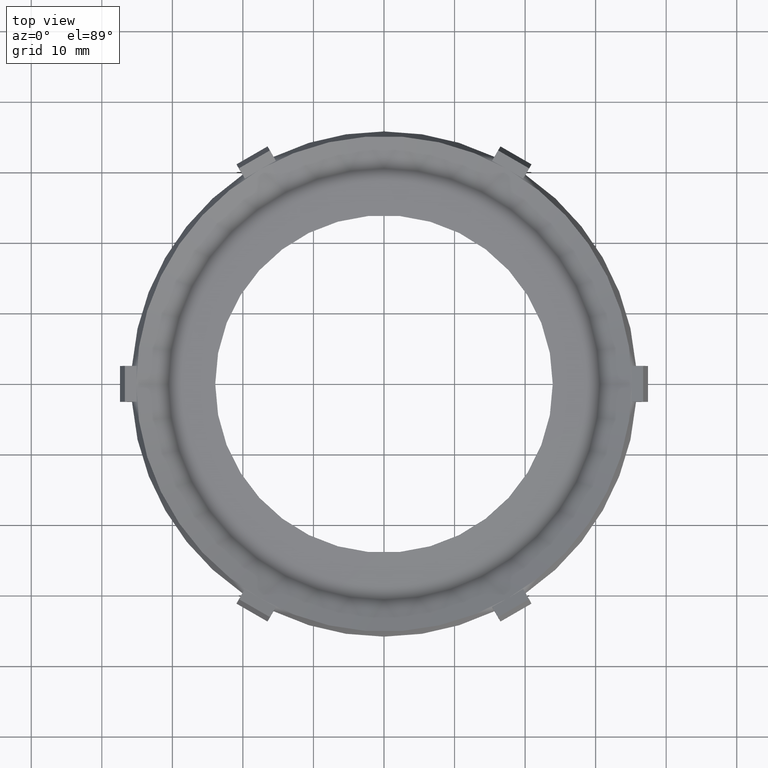
[diagram: clean part render]
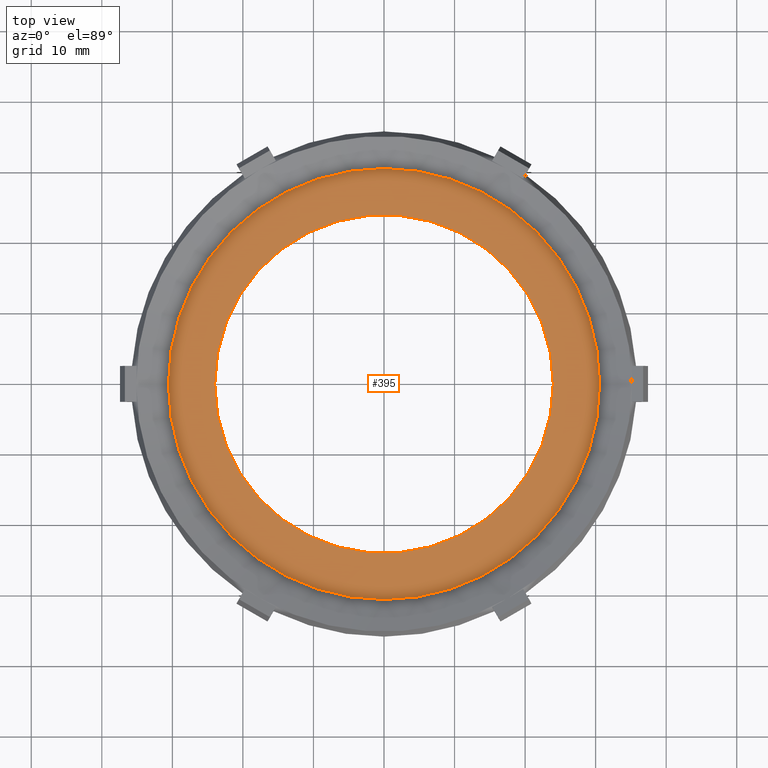
[diagram: same view with one face highlighted and labeled with its STEP entity id]
A machine part, top view. The second image highlights one B-rep face of the part: STEP entity #395.
In plain terms, the highlighted planar face has unit normal (-0, 0, -1).
Its self-contained STEP definition (entity closure, byte-faithful):
#2 = VERTEX_POINT ( 'NONE', #727 ) ;
#3 = VERTEX_POINT ( 'NONE', #726 ) ;
#11 = EDGE_CURVE ( 'NONE', #3, #2, #754, .T. ) ;
#33 = VERTEX_POINT ( 'NONE', #799 ) ;
#51 = VERTEX_POINT ( 'NONE', #908 ) ;
#55 = EDGE_CURVE ( 'NONE', #33, #51, #893, .T. ) ;
#296 = EDGE_LOOP ( 'NONE', ( #323, #398 ) ) ;
#323 = ORIENTED_EDGE ( 'NONE', *, *, #55, .T. ) ;
#326 = ORIENTED_EDGE ( 'NONE', *, *, #11, .F. ) ;
#395 = ADVANCED_FACE ( 'NONE', ( #1475, #1474 ), #1489, .F. ) ;
#398 = ORIENTED_EDGE ( 'NONE', *, *, #399, .T. ) ;
#399 = EDGE_CURVE ( 'NONE', #51, #33, #1498, .T. ) ;
#400 = EDGE_LOOP ( 'NONE', ( #326, #409 ) ) ;
#409 = ORIENTED_EDGE ( 'NONE', *, *, #489, .F. ) ;
#489 = EDGE_CURVE ( 'NONE', #2, #3, #1733, .T. ) ;
#726 = CARTESIAN_POINT ( 'NONE',  ( 1.202889546860454800, 0.0000000000000000000, -0.005514642167915289500 ) ) ;
#727 = CARTESIAN_POINT ( 'NONE',  ( -1.202889546860454800, 1.583280753875847200E-016, -0.005514642167915289500 ) ) ;
#750 = DIRECTION ( 'NONE',  ( -1.000000000000000000, 0.0000000000000000000, 0.0000000000000000000 ) ) ;
#751 = DIRECTION ( 'NONE',  ( -0.0000000000000000000, -0.0000000000000000000, -1.000000000000000000 ) ) ;
#752 = CARTESIAN_POINT ( 'NONE',  ( 0.0000000000000000000, 0.0000000000000000000, -0.005514642167915289500 ) ) ;
#753 = AXIS2_PLACEMENT_3D ( 'NONE', #752, #751, #750 ) ;
#754 = CIRCLE ( 'NONE', #753, 1.202889546860454800 ) ;
#799 = CARTESIAN_POINT ( 'NONE',  ( -0.9450000000000000600, 0.0000000000000000000, -0.005514642167915144600 ) ) ;
#889 = DIRECTION ( 'NONE',  ( -1.000000000000000000, 0.0000000000000000000, 0.0000000000000000000 ) ) ;
#890 = DIRECTION ( 'NONE',  ( -0.0000000000000000000, -0.0000000000000000000, -1.000000000000000000 ) ) ;
#891 = CARTESIAN_POINT ( 'NONE',  ( 0.0000000000000000000, 0.0000000000000000000, -0.005514642167915188900 ) ) ;
#892 = AXIS2_PLACEMENT_3D ( 'NONE', #891, #890, #889 ) ;
#893 = CIRCLE ( 'NONE', #892, 0.9450000000000000600 ) ;
#908 = CARTESIAN_POINT ( 'NONE',  ( 0.9450000000000000600, 1.157253004362146800E-016, -0.005514642167915144600 ) ) ;
#1469 = CARTESIAN_POINT ( 'NONE',  ( 1.202889546860454800, 0.0000000000000000000, -0.005514642167915188900 ) ) ;
#1474 = FACE_OUTER_BOUND ( 'NONE', #400, .T. ) ;
#1475 = FACE_BOUND ( 'NONE', #296, .T. ) ;
#1483 = DIRECTION ( 'NONE',  ( -1.000000000000000000, 0.0000000000000000000, 0.0000000000000000000 ) ) ;
#1484 = DIRECTION ( 'NONE',  ( -0.0000000000000000000, 0.0000000000000000000, -1.000000000000000000 ) ) ;
#1489 = PLANE ( 'NONE',  #1490 ) ;
#1490 = AXIS2_PLACEMENT_3D ( 'NONE', #1469, #1484, #1483 ) ;
#1498 = CIRCLE ( 'NONE', #1511, 0.9450000000000000600 ) ;
#1508 = DIRECTION ( 'NONE',  ( -1.000000000000000000, 0.0000000000000000000, 0.0000000000000000000 ) ) ;
#1509 = DIRECTION ( 'NONE',  ( -0.0000000000000000000, -0.0000000000000000000, -1.000000000000000000 ) ) ;
#1510 = CARTESIAN_POINT ( 'NONE',  ( 0.0000000000000000000, 0.0000000000000000000, -0.005514642167915188900 ) ) ;
#1511 = AXIS2_PLACEMENT_3D ( 'NONE', #1510, #1509, #1508 ) ;
#1722 = AXIS2_PLACEMENT_3D ( 'NONE', #1751, #1750, #1764 ) ;
#1733 = CIRCLE ( 'NONE', #1722, 1.202889546860454800 ) ;
#1750 = DIRECTION ( 'NONE',  ( -0.0000000000000000000, -0.0000000000000000000, -1.000000000000000000 ) ) ;
#1751 = CARTESIAN_POINT ( 'NONE',  ( 0.0000000000000000000, 0.0000000000000000000, -0.005514642167915289500 ) ) ;
#1764 = DIRECTION ( 'NONE',  ( -1.000000000000000000, 0.0000000000000000000, 0.0000000000000000000 ) ) ;